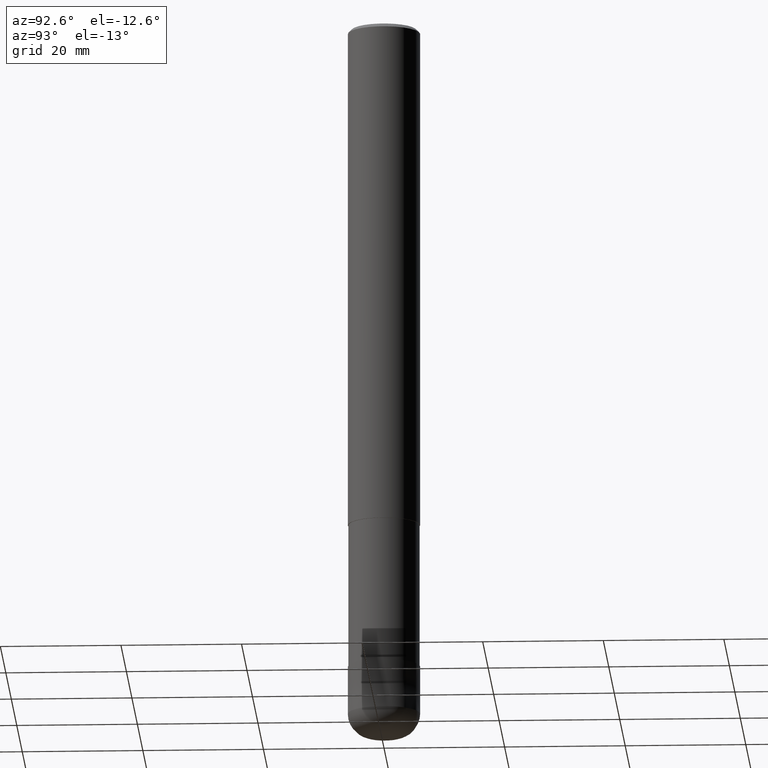
[diagram: clean part render]
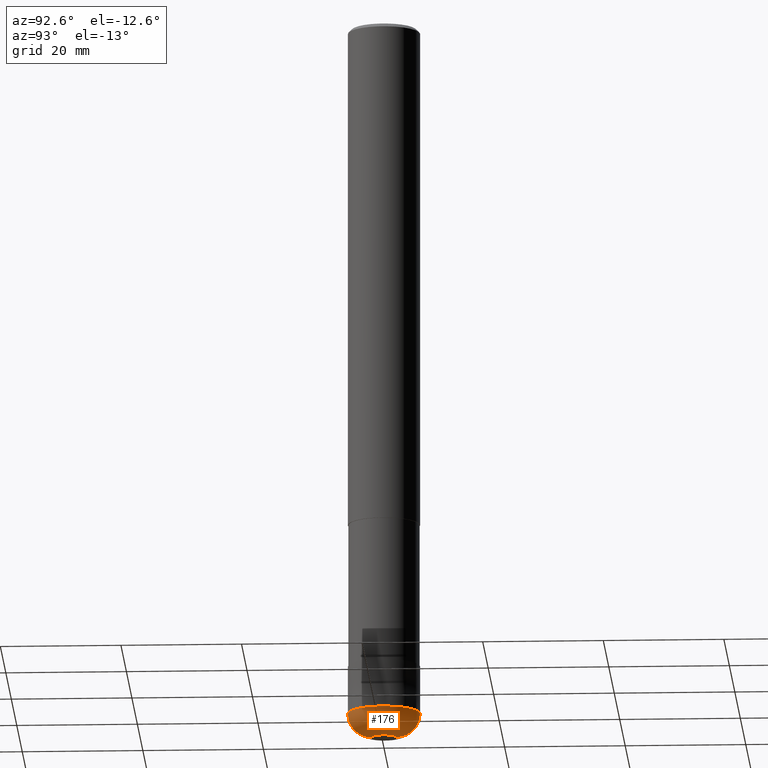
[diagram: same view with one face highlighted and labeled with its STEP entity id]
A machine part, auxiliary view. The second image highlights one B-rep face of the part: STEP entity #176.
In plain terms, the highlighted toroidal blend (fillet) surface has major radius 2 mm and minor (blend) radius 4 mm.
Its self-contained STEP definition (entity closure, byte-faithful):
#98=EDGE_CURVE('',#184,#160,#236,.T.);
#106=EDGE_CURVE('',#156,#108,#245,.T.);
#108=VERTEX_POINT('',#247);
#130=EDGE_CURVE('',#108,#160,#271,.T.);
#136=EDGE_CURVE('',#184,#156,#278,.T.);
#156=VERTEX_POINT('',#301);
#160=VERTEX_POINT('',#305);
#176=ADVANCED_FACE('',(#324),#325,.T.);
#184=VERTEX_POINT('',#333);
#236=CIRCLE('',#382,2.0);
#245=CIRCLE('',#392,6.0);
#247=CARTESIAN_POINT('',(7.34763812293427E-016,-6.0,-116.0));
#271=CIRCLE('',#428,4.0);
#278=CIRCLE('',#436,4.0);
#301=CARTESIAN_POINT('',(0.0,6.0,-116.0));
#305=CARTESIAN_POINT('',(2.44921270764476E-016,-2.0,-120.0));
#324=FACE_OUTER_BOUND('',#490,.T.);
#325=TOROIDAL_SURFACE('',#491,2.0,4.0);
#333=CARTESIAN_POINT('',(0.0,2.0,-120.0));
#382=AXIS2_PLACEMENT_3D('',#550,#551,#552);
#392=AXIS2_PLACEMENT_3D('',#561,#562,#563);
#428=AXIS2_PLACEMENT_3D('',#592,#593,#594);
#436=AXIS2_PLACEMENT_3D('',#603,#604,#605);
#490=EDGE_LOOP('',(#663,#664,#665,#666));
#491=AXIS2_PLACEMENT_3D('',#667,#668,#669);
#550=CARTESIAN_POINT('',(0.0,0.0,-120.0));
#551=DIRECTION('',(0.0,0.0,-1.0));
#552=DIRECTION('',(0.0,1.0,0.0));
#561=CARTESIAN_POINT('',(0.0,0.0,-116.0));
#562=DIRECTION('',(0.0,0.0,-1.0));
#563=DIRECTION('',(0.0,1.0,0.0));
#592=CARTESIAN_POINT('',(2.44921270764475E-016,-2.0,-116.0));
#593=DIRECTION('',(1.0,1.22460635382238E-016,0.0));
#594=DIRECTION('',(1.22460635382238E-016,-1.0,-0.0));
#603=CARTESIAN_POINT('',(-2.44921270764475E-016,2.0,-116.0));
#604=DIRECTION('',(1.0,1.22460635382238E-016,0.0));
#605=DIRECTION('',(-1.22460635382238E-016,1.0,0.0));
#663=ORIENTED_EDGE('',*,*,#130,.T.);
#664=ORIENTED_EDGE('',*,*,#98,.F.);
#665=ORIENTED_EDGE('',*,*,#136,.T.);
#666=ORIENTED_EDGE('',*,*,#106,.T.);
#667=CARTESIAN_POINT('',(0.0,0.0,-116.0));
#668=DIRECTION('',(0.0,0.0,-1.0));
#669=DIRECTION('',(0.0,-1.0,0.0));